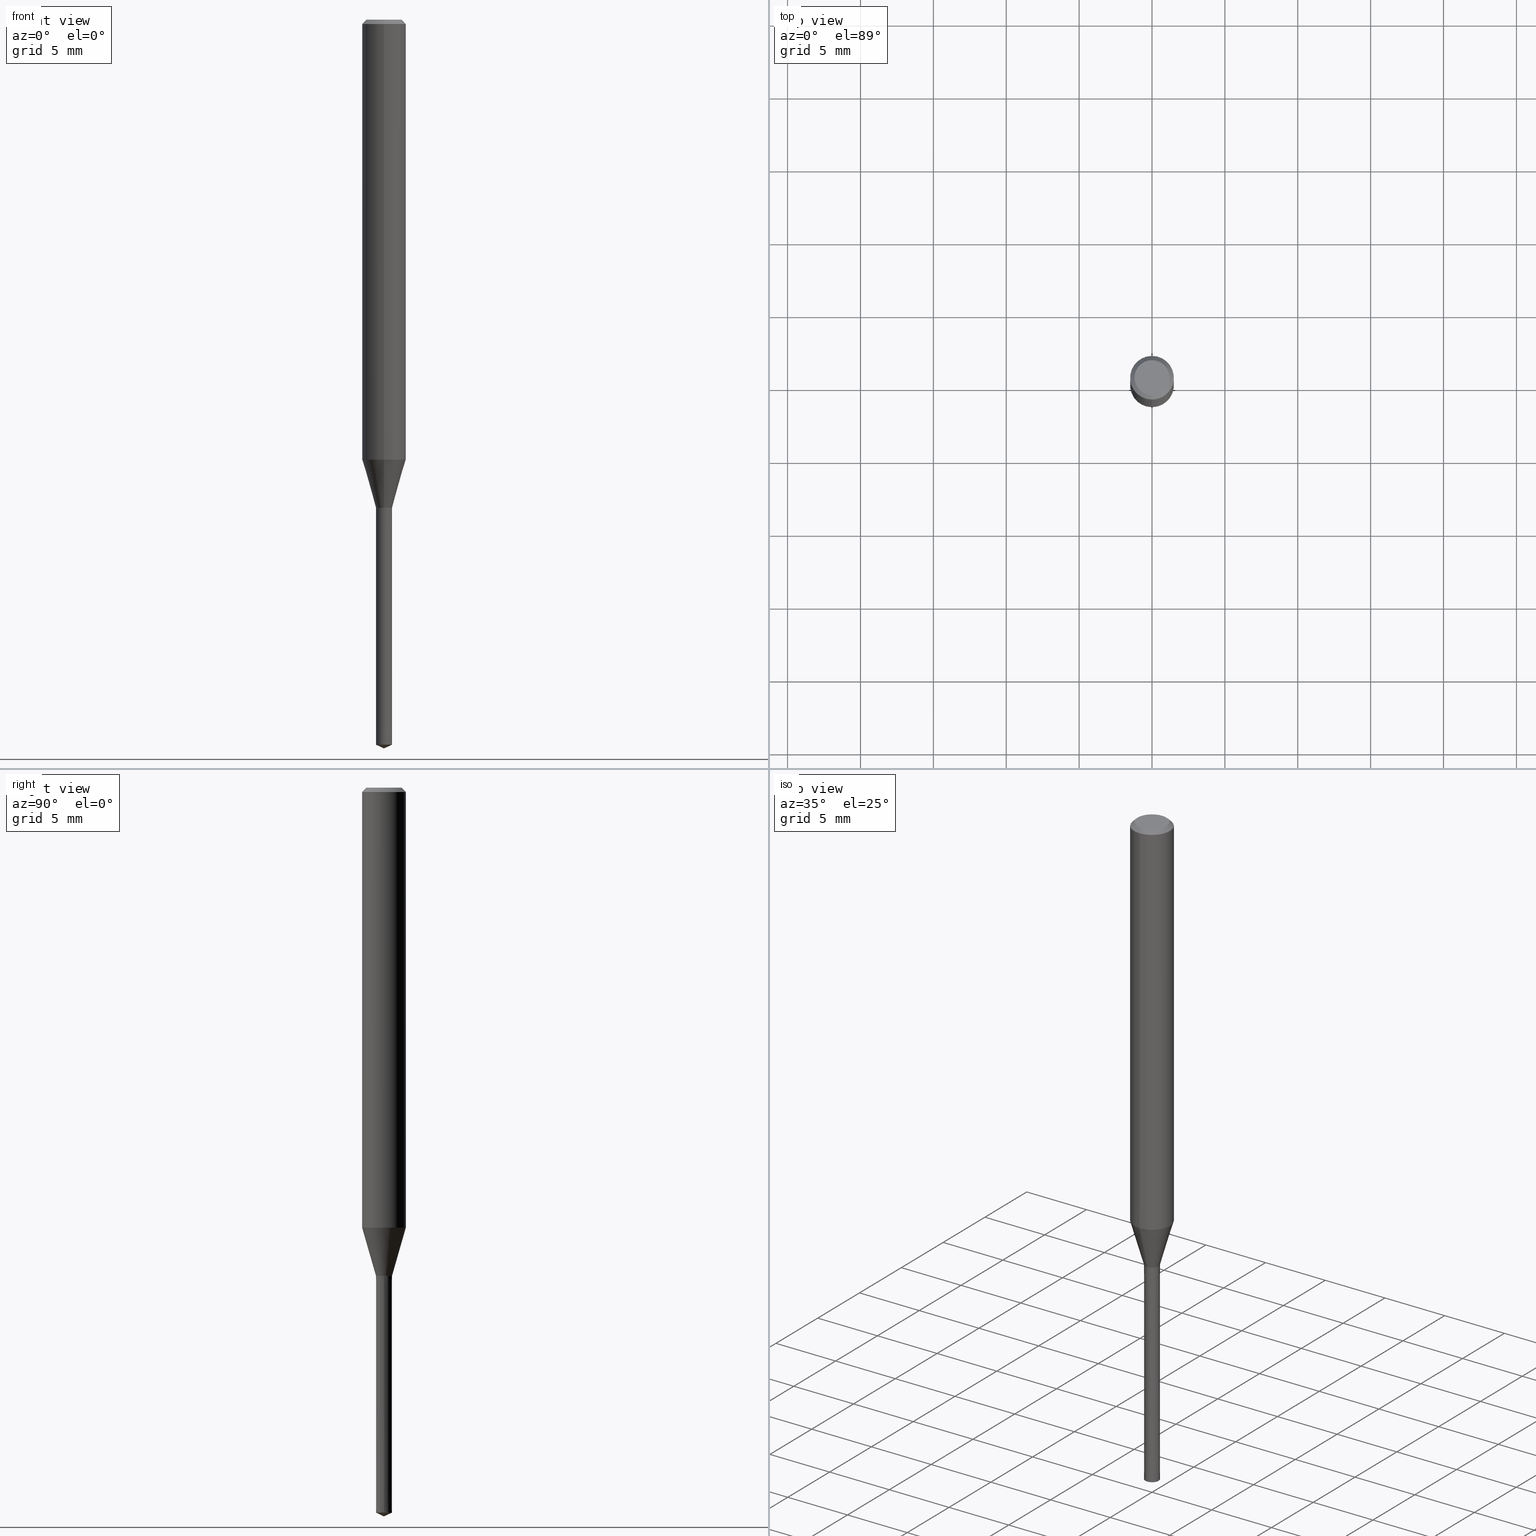
[diagram: canonical four-view strip — front | top / right | iso, engineering-drawing reading convention]
A machine part, canonical four-view strip (front | top / right | iso — engineering-drawing reading convention). The complete STEP part file that produces these views, byte-faithful:
ISO-10303-21;
HEADER;
FILE_DESCRIPTION(('no description'),'unknown implementation level');
FILE_NAME('UTDLX2110-165-Huellk.stp','  ',('CIMSOURCE GmbH'),('CADClick - KiM GmbH - www.kimweb.de'),'unknown preprocess','ACIS','unknown authorization');
FILE_SCHEMA(('automotive_design'));
ENDSEC;
DATA;
#1=MECHANICAL_DESIGN_GEOMETRIC_PRESENTATION_REPRESENTATION(' ',(#14,#15,#16,#17,#18,#19,#20,#21,#22,#23,#24,#25,#26,#27,#28,#29,#30,#31,#32,#33,#34,#35,#36,#37,#38,#39,#40,#41,#42,#43,#44,#45,#46,#47,#48,#49,#50,#51,#52,#53,#54,#55,#56,#57,#58,#59,#60,#61,#62,#63,#64,#65,#66,#67,#68,#69,#70,#71),#10);
#2=PRODUCT_DEFINITION_CONTEXT('',#72,'design');
#3=APPLICATION_PROTOCOL_DEFINITION('INTERNATIONAL STANDARD','automotive_design',1994,#72);
#4=PRODUCT_CATEGORY_RELATIONSHIP('NONE','NONE',#73,#74);
#5=SHAPE_DEFINITION_REPRESENTATION(#75,#76);
#6=PRODUCT_DEFINITION_CONTEXT('',#77,'design');
#7=APPLICATION_PROTOCOL_DEFINITION('INTERNATIONAL STANDARD','automotive_design',1994,#77);
#8=PRODUCT_CATEGORY_RELATIONSHIP('NONE','NONE',#78,#79);
#9=SHAPE_DEFINITION_REPRESENTATION(#80,#81);
#10= (GEOMETRIC_REPRESENTATION_CONTEXT(3)GLOBAL_UNCERTAINTY_ASSIGNED_CONTEXT((#84))GLOBAL_UNIT_ASSIGNED_CONTEXT((#86,#87,#88))REPRESENTATION_CONTEXT('NONE','WORKSPACE'));
#14=STYLED_ITEM('',(#90),#91);
#15=STYLED_ITEM('',(#92),#93);
#16=STYLED_ITEM('',(#94),#95);
#17=STYLED_ITEM('',(#96),#97);
#18=STYLED_ITEM('',(#98),#99);
#19=STYLED_ITEM('',(#100),#101);
#20=STYLED_ITEM('',(#102),#103);
#21=STYLED_ITEM('',(#104),#105);
#22=STYLED_ITEM('',(#106),#107);
#23=STYLED_ITEM('',(#108),#109);
#24=STYLED_ITEM('',(#110),#111);
#25=STYLED_ITEM('',(#112),#113);
#26=STYLED_ITEM('',(#114),#115);
#27=STYLED_ITEM('',(#116),#117);
#28=STYLED_ITEM('',(#118),#119);
#29=STYLED_ITEM('',(#120),#121);
#30=STYLED_ITEM('',(#122),#123);
#31=STYLED_ITEM('',(#124),#125);
#32=STYLED_ITEM('',(#126),#127);
#33=STYLED_ITEM('',(#128),#129);
#34=STYLED_ITEM('',(#130),#131);
#35=STYLED_ITEM('',(#132),#133);
#36=STYLED_ITEM('',(#134),#135);
#37=STYLED_ITEM('',(#136),#137);
#38=STYLED_ITEM('',(#138),#139);
#39=STYLED_ITEM('',(#140),#141);
#40=STYLED_ITEM('',(#142),#143);
#41=STYLED_ITEM('',(#144),#145);
#42=STYLED_ITEM('',(#146),#147);
#43=STYLED_ITEM('',(#148),#149);
#44=STYLED_ITEM('',(#150),#151);
#45=STYLED_ITEM('',(#152),#153);
#46=STYLED_ITEM('',(#154),#155);
#47=STYLED_ITEM('',(#156),#157);
#48=STYLED_ITEM('',(#158),#159);
#49=STYLED_ITEM('',(#160),#161);
#50=STYLED_ITEM('',(#162),#163);
#51=STYLED_ITEM('',(#164),#165);
#52=STYLED_ITEM('',(#166),#167);
#53=STYLED_ITEM('',(#168),#169);
#54=STYLED_ITEM('',(#170),#171);
#55=STYLED_ITEM('',(#172),#173);
#56=STYLED_ITEM('',(#174),#175);
#57=STYLED_ITEM('',(#176),#177);
#58=STYLED_ITEM('',(#178),#179);
#59=STYLED_ITEM('',(#180),#181);
#60=STYLED_ITEM('',(#182),#183);
#61=STYLED_ITEM('',(#184),#185);
#62=STYLED_ITEM('',(#186),#187);
#63=STYLED_ITEM('',(#188),#189);
#64=STYLED_ITEM('',(#190),#191);
#65=STYLED_ITEM('',(#192),#193);
#66=STYLED_ITEM('',(#194),#195);
#67=STYLED_ITEM('',(#196),#197);
#68=STYLED_ITEM('',(#198),#199);
#69=STYLED_ITEM('',(#200),#201);
#70=STYLED_ITEM('',(#202),#203);
#71=STYLED_ITEM('',(#204),#205);
#72=APPLICATION_CONTEXT(' ');
#73=PRODUCT_CATEGORY('part','NONE');
#74=PRODUCT_RELATED_PRODUCT_CATEGORY('detail',' ',(#206));
#75=PRODUCT_DEFINITION_SHAPE('NONE','NONE',#207);
#76=ADVANCED_BREP_SHAPE_REPRESENTATION('1',(#141,#208),#10);
#77=APPLICATION_CONTEXT(' ');
#78=PRODUCT_CATEGORY('part','NONE');
#79=PRODUCT_RELATED_PRODUCT_CATEGORY('detail',' ',(#209));
#80=PRODUCT_DEFINITION_SHAPE('NONE','NONE',#210);
#81=ADVANCED_BREP_SHAPE_REPRESENTATION('2',(#123,#211),#10);
#84=UNCERTAINTY_MEASURE_WITH_UNIT(LENGTH_MEASURE(1.0E-006),#86,'','');
#86= (CONVERSION_BASED_UNIT('MILLIMETRE',#214)LENGTH_UNIT()NAMED_UNIT(#217));
#87= (NAMED_UNIT(#219)PLANE_ANGLE_UNIT()SI_UNIT($,.RADIAN.));
#88= (NAMED_UNIT(#219)SOLID_ANGLE_UNIT()SI_UNIT($,.STERADIAN.));
#90=PRESENTATION_STYLE_ASSIGNMENT((#225));
#91=VERTEX_POINT('',#226);
#92=PRESENTATION_STYLE_ASSIGNMENT((#227));
#93=EDGE_CURVE('',#195,#101,#228,.T.);
#94=PRESENTATION_STYLE_ASSIGNMENT((#229));
#95=VERTEX_POINT('',#230);
#96=PRESENTATION_STYLE_ASSIGNMENT((#231));
#97=VERTEX_POINT('',#232);
#98=PRESENTATION_STYLE_ASSIGNMENT((#233));
#99=VERTEX_POINT('',#234);
#100=PRESENTATION_STYLE_ASSIGNMENT((#235));
#101=VERTEX_POINT('',#236);
#102=PRESENTATION_STYLE_ASSIGNMENT((#237));
#103=ADVANCED_FACE('',(#238),#239,.T.);
#104=PRESENTATION_STYLE_ASSIGNMENT((#240));
#105=EDGE_CURVE('',#121,#173,#241,.T.);
#106=PRESENTATION_STYLE_ASSIGNMENT((#242));
#107=ADVANCED_FACE('',(#243),#244,.T.);
#108=PRESENTATION_STYLE_ASSIGNMENT((#245));
#109=ADVANCED_FACE('',(#246),#247,.T.);
#110=PRESENTATION_STYLE_ASSIGNMENT((#248));
#111=EDGE_CURVE('',#145,#205,#249,.T.);
#112=PRESENTATION_STYLE_ASSIGNMENT((#250));
#113=EDGE_CURVE('',#99,#145,#251,.T.);
#114=PRESENTATION_STYLE_ASSIGNMENT((#252));
#115=EDGE_CURVE('',#205,#131,#253,.T.);
#116=PRESENTATION_STYLE_ASSIGNMENT((#254));
#117=EDGE_CURVE('',#101,#91,#255,.T.);
#118=PRESENTATION_STYLE_ASSIGNMENT((#256));
#119=ADVANCED_FACE('',(#257),#258,.T.);
#120=PRESENTATION_STYLE_ASSIGNMENT((#259));
#121=VERTEX_POINT('',#260);
#122=PRESENTATION_STYLE_ASSIGNMENT((#261));
#123=MANIFOLD_SOLID_BREP('2',#262);
#124=PRESENTATION_STYLE_ASSIGNMENT((#263));
#125=EDGE_CURVE('',#131,#139,#264,.T.);
#126=PRESENTATION_STYLE_ASSIGNMENT((#265));
#127=EDGE_CURVE('',#95,#195,#266,.T.);
#128=PRESENTATION_STYLE_ASSIGNMENT((#267));
#129=ADVANCED_FACE('',(#268),#269,.T.);
#130=PRESENTATION_STYLE_ASSIGNMENT((#270));
#131=VERTEX_POINT('',#271);
#132=PRESENTATION_STYLE_ASSIGNMENT((#272));
#133=ADVANCED_FACE('',(#273),#274,.T.);
#134=PRESENTATION_STYLE_ASSIGNMENT((#275));
#135=EDGE_CURVE('',#173,#121,#276,.T.);
#136=PRESENTATION_STYLE_ASSIGNMENT((#277));
#137=EDGE_CURVE('',#95,#91,#278,.T.);
#138=PRESENTATION_STYLE_ASSIGNMENT((#279));
#139=VERTEX_POINT('',#280);
#140=PRESENTATION_STYLE_ASSIGNMENT((#281));
#141=MANIFOLD_SOLID_BREP('1',#282);
#142=PRESENTATION_STYLE_ASSIGNMENT((#283));
#143=ADVANCED_FACE('',(#284),#285,.T.);
#144=PRESENTATION_STYLE_ASSIGNMENT((#286));
#145=VERTEX_POINT('',#287);
#146=PRESENTATION_STYLE_ASSIGNMENT((#288));
#147=EDGE_CURVE('',#99,#205,#289,.T.);
#148=PRESENTATION_STYLE_ASSIGNMENT((#290));
#149=EDGE_CURVE('',#101,#195,#291,.T.);
#150=PRESENTATION_STYLE_ASSIGNMENT((#292));
#151=EDGE_CURVE('',#165,#175,#293,.T.);
#152=PRESENTATION_STYLE_ASSIGNMENT((#294));
#153=EDGE_CURVE('',#139,#99,#295,.T.);
#154=PRESENTATION_STYLE_ASSIGNMENT((#296));
#155=EDGE_CURVE('',#139,#131,#297,.T.);
#156=PRESENTATION_STYLE_ASSIGNMENT((#298));
#157=EDGE_CURVE('',#173,#97,#299,.T.);
#158=PRESENTATION_STYLE_ASSIGNMENT((#300));
#159=VERTEX_POINT('',#301);
#160=PRESENTATION_STYLE_ASSIGNMENT((#302));
#161=ADVANCED_FACE('',(#303),#304,.T.);
#162=PRESENTATION_STYLE_ASSIGNMENT((#305));
#163=EDGE_CURVE('',#205,#99,#306,.T.);
#164=PRESENTATION_STYLE_ASSIGNMENT((#307));
#165=VERTEX_POINT('',#308);
#166=PRESENTATION_STYLE_ASSIGNMENT((#309));
#167=ADVANCED_FACE('',(#310),#311,.T.);
#168=PRESENTATION_STYLE_ASSIGNMENT((#312));
#169=EDGE_CURVE('',#165,#159,#313,.T.);
#170=PRESENTATION_STYLE_ASSIGNMENT((#314));
#171=EDGE_CURVE('',#91,#95,#315,.T.);
#172=PRESENTATION_STYLE_ASSIGNMENT((#316));
#173=VERTEX_POINT('',#317);
#174=PRESENTATION_STYLE_ASSIGNMENT((#318));
#175=VERTEX_POINT('',#319);
#176=PRESENTATION_STYLE_ASSIGNMENT((#320));
#177=ADVANCED_FACE('',(#321),#322,.T.);
#178=PRESENTATION_STYLE_ASSIGNMENT((#323));
#179=ADVANCED_FACE('',(#324),#325,.T.);
#180=PRESENTATION_STYLE_ASSIGNMENT((#326));
#181=ADVANCED_FACE('',(#327),#328,.T.);
#182=PRESENTATION_STYLE_ASSIGNMENT((#329));
#183=EDGE_CURVE('',#91,#173,#330,.T.);
#184=PRESENTATION_STYLE_ASSIGNMENT((#331));
#185=EDGE_CURVE('',#159,#121,#332,.T.);
#186=PRESENTATION_STYLE_ASSIGNMENT((#333));
#187=EDGE_CURVE('',#121,#95,#334,.T.);
#188=PRESENTATION_STYLE_ASSIGNMENT((#335));
#189=EDGE_CURVE('',#97,#175,#336,.T.);
#190=PRESENTATION_STYLE_ASSIGNMENT((#337));
#191=EDGE_CURVE('',#175,#165,#338,.T.);
#192=PRESENTATION_STYLE_ASSIGNMENT((#339));
#193=ADVANCED_FACE('',(#340),#341,.T.);
#194=PRESENTATION_STYLE_ASSIGNMENT((#342));
#195=VERTEX_POINT('',#343);
#196=PRESENTATION_STYLE_ASSIGNMENT((#344));
#197=EDGE_CURVE('',#159,#97,#345,.T.);
#198=PRESENTATION_STYLE_ASSIGNMENT((#346));
#199=ADVANCED_FACE('',(#347),#348,.T.);
#200=PRESENTATION_STYLE_ASSIGNMENT((#349));
#201=ADVANCED_FACE('',(#350),#351,.T.);
#202=PRESENTATION_STYLE_ASSIGNMENT((#352));
#203=EDGE_CURVE('',#97,#159,#353,.T.);
#204=PRESENTATION_STYLE_ASSIGNMENT((#354));
#205=VERTEX_POINT('',#355);
#206=PRODUCT('1','1','PART-1-DESC',(#356));
#207=PRODUCT_DEFINITION('NONE','NONE',#357,#2);
#208=AXIS2_PLACEMENT_3D('',#358,#359,#360);
#209=PRODUCT('2','2','PART-2-DESC',(#361));
#210=PRODUCT_DEFINITION('NONE','NONE',#362,#6);
#211=AXIS2_PLACEMENT_3D('',#363,#364,#365);
#214=LENGTH_MEASURE_WITH_UNIT(LENGTH_MEASURE(1.0),#366);
#217=DIMENSIONAL_EXPONENTS(1.0,0.0,0.0,0.0,0.0,0.0,0.0);
#219=DIMENSIONAL_EXPONENTS(0.0,0.0,0.0,0.0,0.0,0.0,0.0);
#225=POINT_STYLE(' ',#367,POSITIVE_LENGTH_MEASURE(1.0E-006),#368);
#226=CARTESIAN_POINT('',(6.73533494602308E-017,-0.55,-33.4991339745962));
#227=CURVE_STYLE('',#369,POSITIVE_LENGTH_MEASURE(1.0E-006),#370);
#228=CIRCLE('',#371,0.5505);
#229=POINT_STYLE(' ',#372,POSITIVE_LENGTH_MEASURE(1.0E-006),#373);
#230=CARTESIAN_POINT('',(0.0,0.55,-33.4991339745962));
#231=POINT_STYLE(' ',#374,POSITIVE_LENGTH_MEASURE(1.0E-006),#375);
#232=CARTESIAN_POINT('',(1.83690953073357E-016,-1.5,-0.300000000000001));
#233=POINT_STYLE(' ',#376,POSITIVE_LENGTH_MEASURE(1.0E-006),#377);
#234=CARTESIAN_POINT('',(-0.55,0.0,-49.74353079));
#235=POINT_STYLE(' ',#378,POSITIVE_LENGTH_MEASURE(1.0E-006),#379);
#236=CARTESIAN_POINT('',(6.74145797779219E-017,-0.5505,-33.5));
#237=SURFACE_STYLE_USAGE(.BOTH.,#380);
#238=FACE_OUTER_BOUND('',#381,.T.);
#239=PLANE('',#382);
#240=CURVE_STYLE('',#383,POSITIVE_LENGTH_MEASURE(1.0E-006),#384);
#241=CIRCLE('',#385,1.5);
#242=SURFACE_STYLE_USAGE(.BOTH.,#386);
#243=FACE_OUTER_BOUND('',#387,.T.);
#244=CONICAL_SURFACE('',#388,0.55025,0.52359877559836);
#245=SURFACE_STYLE_USAGE(.BOTH.,#389);
#246=FACE_OUTER_BOUND('',#390,.T.);
#247=PLANE('',#391);
#248=CURVE_STYLE('',#392,POSITIVE_LENGTH_MEASURE(1.0E-006),#393);
#249=LINE('',#394,#395);
#250=CURVE_STYLE('',#396,POSITIVE_LENGTH_MEASURE(1.0E-006),#397);
#251=LINE('',#398,#399);
#252=CURVE_STYLE('',#400,POSITIVE_LENGTH_MEASURE(1.0E-006),#401);
#253=LINE('',#402,#403);
#254=CURVE_STYLE('',#404,POSITIVE_LENGTH_MEASURE(1.0E-006),#405);
#255=LINE('',#406,#407);
#256=SURFACE_STYLE_USAGE(.BOTH.,#408);
#257=FACE_OUTER_BOUND('',#409,.T.);
#258=CYLINDRICAL_SURFACE('',#410,1.5);
#259=POINT_STYLE(' ',#411,POSITIVE_LENGTH_MEASURE(1.0E-006),#412);
#260=CARTESIAN_POINT('',(0.0,1.5,-30.187));
#261=SURFACE_STYLE_USAGE(.BOTH.,#413);
#262=CLOSED_SHELL('',(#129,#201,#143,#179,#181));
#263=CURVE_STYLE('',#414,POSITIVE_LENGTH_MEASURE(1.0E-006),#415);
#264=CIRCLE('',#416,0.551);
#265=CURVE_STYLE('',#417,POSITIVE_LENGTH_MEASURE(1.0E-006),#418);
#266=LINE('',#419,#420);
#267=SURFACE_STYLE_USAGE(.BOTH.,#421);
#268=FACE_OUTER_BOUND('',#422,.T.);
#269=CONICAL_SURFACE('',#423,0.275,1.13446401676117);
#270=POINT_STYLE(' ',#424,POSITIVE_LENGTH_MEASURE(1.0E-006),#425);
#271=CARTESIAN_POINT('',(0.551,6.7475810095613E-017,-33.5));
#272=SURFACE_STYLE_USAGE(.BOTH.,#426);
#273=FACE_OUTER_BOUND('',#427,.T.);
#274=CONICAL_SURFACE('',#428,1.025,0.279325455519514);
#275=CURVE_STYLE('',#429,POSITIVE_LENGTH_MEASURE(1.0E-006),#430);
#276=CIRCLE('',#431,1.5);
#277=CURVE_STYLE('',#432,POSITIVE_LENGTH_MEASURE(1.0E-006),#433);
#278=CIRCLE('',#434,0.55);
#279=POINT_STYLE(' ',#435,POSITIVE_LENGTH_MEASURE(1.0E-006),#436);
#280=CARTESIAN_POINT('',(-0.551,0.0,-33.5));
#281=SURFACE_STYLE_USAGE(.BOTH.,#437);
#282=CLOSED_SHELL('',(#167,#199,#193,#177,#109,#161,#119,#133,#107,#103));
#283=SURFACE_STYLE_USAGE(.BOTH.,#438);
#284=FACE_OUTER_BOUND('',#439,.T.);
#285=PLANE('',#440);
#286=POINT_STYLE(' ',#441,POSITIVE_LENGTH_MEASURE(1.0E-006),#442);
#287=CARTESIAN_POINT('',(0.0,0.0,-50.0));
#288=CURVE_STYLE('',#443,POSITIVE_LENGTH_MEASURE(1.0E-006),#444);
#289=CIRCLE('',#445,0.55);
#290=CURVE_STYLE('',#446,POSITIVE_LENGTH_MEASURE(1.0E-006),#447);
#291=CIRCLE('',#448,0.5505);
#292=CURVE_STYLE('',#449,POSITIVE_LENGTH_MEASURE(1.0E-006),#450);
#293=CIRCLE('',#451,1.2);
#294=CURVE_STYLE('',#452,POSITIVE_LENGTH_MEASURE(1.0E-006),#453);
#295=LINE('',#454,#455);
#296=CURVE_STYLE('',#456,POSITIVE_LENGTH_MEASURE(1.0E-006),#457);
#297=CIRCLE('',#458,0.551);
#298=CURVE_STYLE('',#459,POSITIVE_LENGTH_MEASURE(1.0E-006),#460);
#299=LINE('',#461,#462);
#300=POINT_STYLE(' ',#463,POSITIVE_LENGTH_MEASURE(1.0E-006),#464);
#301=CARTESIAN_POINT('',(0.0,1.5,-0.300000000000001));
#302=SURFACE_STYLE_USAGE(.BOTH.,#465);
#303=FACE_OUTER_BOUND('',#466,.T.);
#304=CONICAL_SURFACE('',#467,1.35,0.785398163397447);
#305=CURVE_STYLE('',#468,POSITIVE_LENGTH_MEASURE(1.0E-006),#469);
#306=CIRCLE('',#470,0.55);
#307=POINT_STYLE(' ',#471,POSITIVE_LENGTH_MEASURE(1.0E-006),#472);
#308=CARTESIAN_POINT('',(0.0,1.2,0.0));
#309=SURFACE_STYLE_USAGE(.BOTH.,#473);
#310=FACE_OUTER_BOUND('',#474,.T.);
#311=CONICAL_SURFACE('',#475,0.55025,0.52359877559836);
#312=CURVE_STYLE('',#476,POSITIVE_LENGTH_MEASURE(1.0E-006),#477);
#313=LINE('',#478,#479);
#314=CURVE_STYLE('',#480,POSITIVE_LENGTH_MEASURE(1.0E-006),#481);
#315=CIRCLE('',#482,0.55);
#316=POINT_STYLE(' ',#483,POSITIVE_LENGTH_MEASURE(1.0E-006),#484);
#317=CARTESIAN_POINT('',(1.83690953073357E-016,-1.5,-30.187));
#318=POINT_STYLE(' ',#485,POSITIVE_LENGTH_MEASURE(1.0E-006),#486);
#319=CARTESIAN_POINT('',(1.46952762458685E-016,-1.2,0.0));
#320=SURFACE_STYLE_USAGE(.BOTH.,#487);
#321=FACE_OUTER_BOUND('',#488,.T.);
#322=CONICAL_SURFACE('',#489,1.35,0.785398163397447);
#323=SURFACE_STYLE_USAGE(.BOTH.,#490);
#324=FACE_OUTER_BOUND('',#491,.T.);
#325=CONICAL_SURFACE('',#492,0.5505,6.15629700010971E-005);
#326=SURFACE_STYLE_USAGE(.BOTH.,#493);
#327=FACE_OUTER_BOUND('',#494,.T.);
#328=CONICAL_SURFACE('',#495,0.275,1.13446401676117);
#329=CURVE_STYLE('',#496,POSITIVE_LENGTH_MEASURE(1.0E-006),#497);
#330=LINE('',#498,#499);
#331=CURVE_STYLE('',#500,POSITIVE_LENGTH_MEASURE(1.0E-006),#501);
#332=LINE('',#502,#503);
#333=CURVE_STYLE('',#504,POSITIVE_LENGTH_MEASURE(1.0E-006),#505);
#334=LINE('',#506,#507);
#335=CURVE_STYLE('',#508,POSITIVE_LENGTH_MEASURE(1.0E-006),#509);
#336=LINE('',#510,#511);
#337=CURVE_STYLE('',#512,POSITIVE_LENGTH_MEASURE(1.0E-006),#513);
#338=CIRCLE('',#514,1.2);
#339=SURFACE_STYLE_USAGE(.BOTH.,#515);
#340=FACE_OUTER_BOUND('',#516,.T.);
#341=CYLINDRICAL_SURFACE('',#517,1.5);
#342=POINT_STYLE(' ',#518,POSITIVE_LENGTH_MEASURE(1.0E-006),#519);
#343=CARTESIAN_POINT('',(0.0,0.5505,-33.5));
#344=CURVE_STYLE('',#520,POSITIVE_LENGTH_MEASURE(1.0E-006),#521);
#345=CIRCLE('',#522,1.5);
#346=SURFACE_STYLE_USAGE(.BOTH.,#523);
#347=FACE_OUTER_BOUND('',#524,.T.);
#348=CONICAL_SURFACE('',#525,1.025,0.279325455519514);
#349=SURFACE_STYLE_USAGE(.BOTH.,#526);
#350=FACE_OUTER_BOUND('',#527,.T.);
#351=CONICAL_SURFACE('',#528,0.5505,6.15629700010971E-005);
#352=CURVE_STYLE('',#529,POSITIVE_LENGTH_MEASURE(1.0E-006),#530);
#353=CIRCLE('',#531,1.5);
#354=POINT_STYLE(' ',#532,POSITIVE_LENGTH_MEASURE(1.0E-006),#533);
#355=CARTESIAN_POINT('',(0.55,6.73533494602308E-017,-49.74353079));
#356=PRODUCT_CONTEXT('',#72,'mechanical');
#357=PRODUCT_DEFINITION_FORMATION_WITH_SPECIFIED_SOURCE(' ','NONE',#206,.NOT_KNOWN.);
#358=CARTESIAN_POINT('',(0.0,0.0,0.0));
#359=DIRECTION('',(0.0,0.0,1.0));
#360=DIRECTION('',(1.0,0.0,0.0));
#361=PRODUCT_CONTEXT('',#77,'mechanical');
#362=PRODUCT_DEFINITION_FORMATION_WITH_SPECIFIED_SOURCE(' ','NONE',#209,.NOT_KNOWN.);
#363=CARTESIAN_POINT('',(0.0,0.0,0.0));
#364=DIRECTION('',(0.0,0.0,1.0));
#365=DIRECTION('',(1.0,0.0,0.0));
#366= (NAMED_UNIT(#217)LENGTH_UNIT()SI_UNIT(.MILLI.,.METRE.));
#367=PRE_DEFINED_MARKER('');
#368=COLOUR_RGB('',0.498039215803146,0.498039215803146,0.498039215803146);
#369=DRAUGHTING_PRE_DEFINED_CURVE_FONT('continuous');
#370=COLOUR_RGB('',0.498039215803146,0.498039215803146,0.498039215803146);
#371=AXIS2_PLACEMENT_3D('',#535,#536,#537);
#372=PRE_DEFINED_MARKER('');
#373=COLOUR_RGB('',0.498039215803146,0.498039215803146,0.498039215803146);
#374=PRE_DEFINED_MARKER('');
#375=COLOUR_RGB('',0.498039215803146,0.498039215803146,0.498039215803146);
#376=PRE_DEFINED_MARKER('');
#377=COLOUR_RGB('',0.800000011920929,0.800000011920929,0.800000011920929);
#378=PRE_DEFINED_MARKER('');
#379=COLOUR_RGB('',0.498039215803146,0.498039215803146,0.498039215803146);
#380=SURFACE_SIDE_STYLE('',(#538));
#381=EDGE_LOOP('',(#539,#540));
#382=AXIS2_PLACEMENT_3D('',#541,#542,#543);
#383=DRAUGHTING_PRE_DEFINED_CURVE_FONT('continuous');
#384=COLOUR_RGB('',0.498039215803146,0.498039215803146,0.498039215803146);
#385=AXIS2_PLACEMENT_3D('',#544,#545,#546);
#386=SURFACE_SIDE_STYLE('',(#547));
#387=EDGE_LOOP('',(#548,#549,#550,#551));
#388=AXIS2_PLACEMENT_3D('',#552,#553,#554);
#389=SURFACE_SIDE_STYLE('',(#555));
#390=EDGE_LOOP('',(#556,#557));
#391=AXIS2_PLACEMENT_3D('',#558,#559,#560);
#392=DRAUGHTING_PRE_DEFINED_CURVE_FONT('continuous');
#393=COLOUR_RGB('',0.800000011920929,0.800000011920929,0.800000011920929);
#394=CARTESIAN_POINT('',(0.275,3.36766747301154E-017,-49.871765395));
#395=VECTOR('',#561,1.0);
#396=DRAUGHTING_PRE_DEFINED_CURVE_FONT('continuous');
#397=COLOUR_RGB('',0.800000011920929,0.800000011920929,0.800000011920929);
#398=CARTESIAN_POINT('',(-0.275,-3.36766747301154E-017,-49.871765395));
#399=VECTOR('',#562,1.0);
#400=DRAUGHTING_PRE_DEFINED_CURVE_FONT('continuous');
#401=COLOUR_RGB('',0.800000011920929,0.800000011920929,0.800000011920929);
#402=CARTESIAN_POINT('',(0.5505,6.74145797779219E-017,-41.621765395));
#403=VECTOR('',#563,1.0);
#404=DRAUGHTING_PRE_DEFINED_CURVE_FONT('continuous');
#405=COLOUR_RGB('',0.498039215803146,0.498039215803146,0.498039215803146);
#406=CARTESIAN_POINT('',(6.73839646190763E-017,-0.55025,-33.4995669872981));
#407=VECTOR('',#564,1.0);
#408=SURFACE_SIDE_STYLE('',(#565));
#409=EDGE_LOOP('',(#566,#567,#568,#569));
#410=AXIS2_PLACEMENT_3D('',#570,#571,#572);
#411=PRE_DEFINED_MARKER('');
#412=COLOUR_RGB('',0.498039215803146,0.498039215803146,0.498039215803146);
#413=SURFACE_SIDE_STYLE('',(#573));
#414=DRAUGHTING_PRE_DEFINED_CURVE_FONT('continuous');
#415=COLOUR_RGB('',0.800000011920929,0.800000011920929,0.800000011920929);
#416=AXIS2_PLACEMENT_3D('',#574,#575,#576);
#417=DRAUGHTING_PRE_DEFINED_CURVE_FONT('continuous');
#418=COLOUR_RGB('',0.498039215803146,0.498039215803146,0.498039215803146);
#419=CARTESIAN_POINT('',(-6.73839646190763E-017,0.55025,-33.4995669872981));
#420=VECTOR('',#577,1.0);
#421=SURFACE_SIDE_STYLE('',(#578));
#422=EDGE_LOOP('',(#579,#580,#581));
#423=AXIS2_PLACEMENT_3D('',#582,#583,#584);
#424=PRE_DEFINED_MARKER('');
#425=COLOUR_RGB('',0.800000011920929,0.800000011920929,0.800000011920929);
#426=SURFACE_SIDE_STYLE('',(#585));
#427=EDGE_LOOP('',(#586,#587,#588,#589));
#428=AXIS2_PLACEMENT_3D('',#590,#591,#592);
#429=DRAUGHTING_PRE_DEFINED_CURVE_FONT('continuous');
#430=COLOUR_RGB('',0.498039215803146,0.498039215803146,0.498039215803146);
#431=AXIS2_PLACEMENT_3D('',#593,#594,#595);
#432=DRAUGHTING_PRE_DEFINED_CURVE_FONT('continuous');
#433=COLOUR_RGB('',0.498039215803146,0.498039215803146,0.498039215803146);
#434=AXIS2_PLACEMENT_3D('',#596,#597,#598);
#435=PRE_DEFINED_MARKER('');
#436=COLOUR_RGB('',0.800000011920929,0.800000011920929,0.800000011920929);
#437=SURFACE_SIDE_STYLE('',(#599));
#438=SURFACE_SIDE_STYLE('',(#600));
#439=EDGE_LOOP('',(#601,#602));
#440=AXIS2_PLACEMENT_3D('',#603,#604,#605);
#441=PRE_DEFINED_MARKER('');
#442=COLOUR_RGB('',0.800000011920929,0.800000011920929,0.800000011920929);
#443=DRAUGHTING_PRE_DEFINED_CURVE_FONT('continuous');
#444=COLOUR_RGB('',0.800000011920929,0.800000011920929,0.800000011920929);
#445=AXIS2_PLACEMENT_3D('',#606,#607,#608);
#446=DRAUGHTING_PRE_DEFINED_CURVE_FONT('continuous');
#447=COLOUR_RGB('',0.498039215803146,0.498039215803146,0.498039215803146);
#448=AXIS2_PLACEMENT_3D('',#609,#610,#611);
#449=DRAUGHTING_PRE_DEFINED_CURVE_FONT('continuous');
#450=COLOUR_RGB('',0.498039215803146,0.498039215803146,0.498039215803146);
#451=AXIS2_PLACEMENT_3D('',#612,#613,#614);
#452=DRAUGHTING_PRE_DEFINED_CURVE_FONT('continuous');
#453=COLOUR_RGB('',0.800000011920929,0.800000011920929,0.800000011920929);
#454=CARTESIAN_POINT('',(-0.5505,-6.74145797779219E-017,-41.621765395));
#455=VECTOR('',#615,1.0);
#456=DRAUGHTING_PRE_DEFINED_CURVE_FONT('continuous');
#457=COLOUR_RGB('',0.800000011920929,0.800000011920929,0.800000011920929);
#458=AXIS2_PLACEMENT_3D('',#616,#617,#618);
#459=DRAUGHTING_PRE_DEFINED_CURVE_FONT('continuous');
#460=COLOUR_RGB('',0.498039215803146,0.498039215803146,0.498039215803146);
#461=CARTESIAN_POINT('',(1.83690953073357E-016,-1.5,-15.2435));
#462=VECTOR('',#619,1.0);
#463=PRE_DEFINED_MARKER('');
#464=COLOUR_RGB('',0.498039215803146,0.498039215803146,0.498039215803146);
#465=SURFACE_SIDE_STYLE('',(#620));
#466=EDGE_LOOP('',(#621,#622,#623,#624));
#467=AXIS2_PLACEMENT_3D('',#625,#626,#627);
#468=DRAUGHTING_PRE_DEFINED_CURVE_FONT('continuous');
#469=COLOUR_RGB('',0.800000011920929,0.800000011920929,0.800000011920929);
#470=AXIS2_PLACEMENT_3D('',#628,#629,#630);
#471=PRE_DEFINED_MARKER('');
#472=COLOUR_RGB('',0.498039215803146,0.498039215803146,0.498039215803146);
#473=SURFACE_SIDE_STYLE('',(#631));
#474=EDGE_LOOP('',(#632,#633,#634,#635));
#475=AXIS2_PLACEMENT_3D('',#636,#637,#638);
#476=DRAUGHTING_PRE_DEFINED_CURVE_FONT('continuous');
#477=COLOUR_RGB('',0.498039215803146,0.498039215803146,0.498039215803146);
#478=CARTESIAN_POINT('',(-1.65321857766021E-016,1.35,-0.150000000000002));
#479=VECTOR('',#639,1.0);
#480=DRAUGHTING_PRE_DEFINED_CURVE_FONT('continuous');
#481=COLOUR_RGB('',0.498039215803146,0.498039215803146,0.498039215803146);
#482=AXIS2_PLACEMENT_3D('',#640,#641,#642);
#483=PRE_DEFINED_MARKER('');
#484=COLOUR_RGB('',0.498039215803146,0.498039215803146,0.498039215803146);
#485=PRE_DEFINED_MARKER('');
#486=COLOUR_RGB('',0.498039215803146,0.498039215803146,0.498039215803146);
#487=SURFACE_SIDE_STYLE('',(#643));
#488=EDGE_LOOP('',(#644,#645,#646,#647));
#489=AXIS2_PLACEMENT_3D('',#648,#649,#650);
#490=SURFACE_SIDE_STYLE('',(#651));
#491=EDGE_LOOP('',(#652,#653,#654,#655));
#492=AXIS2_PLACEMENT_3D('',#656,#657,#658);
#493=SURFACE_SIDE_STYLE('',(#659));
#494=EDGE_LOOP('',(#660,#661,#662));
#495=AXIS2_PLACEMENT_3D('',#663,#664,#665);
#496=DRAUGHTING_PRE_DEFINED_CURVE_FONT('continuous');
#497=COLOUR_RGB('',0.498039215803146,0.498039215803146,0.498039215803146);
#498=CARTESIAN_POINT('',(1.25522151266794E-016,-1.025,-31.8430669872981));
#499=VECTOR('',#666,1.0);
#500=DRAUGHTING_PRE_DEFINED_CURVE_FONT('continuous');
#501=COLOUR_RGB('',0.498039215803146,0.498039215803146,0.498039215803146);
#502=CARTESIAN_POINT('',(-1.83690953073357E-016,1.5,-15.2435));
#503=VECTOR('',#667,1.0);
#504=DRAUGHTING_PRE_DEFINED_CURVE_FONT('continuous');
#505=COLOUR_RGB('',0.498039215803146,0.498039215803146,0.498039215803146);
#506=CARTESIAN_POINT('',(-1.25522151266794E-016,1.025,-31.8430669872981));
#507=VECTOR('',#668,1.0);
#508=DRAUGHTING_PRE_DEFINED_CURVE_FONT('continuous');
#509=COLOUR_RGB('',0.498039215803146,0.498039215803146,0.498039215803146);
#510=CARTESIAN_POINT('',(1.65321857766021E-016,-1.35,-0.150000000000002));
#511=VECTOR('',#669,1.0);
#512=DRAUGHTING_PRE_DEFINED_CURVE_FONT('continuous');
#513=COLOUR_RGB('',0.498039215803146,0.498039215803146,0.498039215803146);
#514=AXIS2_PLACEMENT_3D('',#670,#671,#672);
#515=SURFACE_SIDE_STYLE('',(#673));
#516=EDGE_LOOP('',(#674,#675,#676,#677));
#517=AXIS2_PLACEMENT_3D('',#678,#679,#680);
#518=PRE_DEFINED_MARKER('');
#519=COLOUR_RGB('',0.498039215803146,0.498039215803146,0.498039215803146);
#520=DRAUGHTING_PRE_DEFINED_CURVE_FONT('continuous');
#521=COLOUR_RGB('',0.498039215803146,0.498039215803146,0.498039215803146);
#522=AXIS2_PLACEMENT_3D('',#681,#682,#683);
#523=SURFACE_SIDE_STYLE('',(#684));
#524=EDGE_LOOP('',(#685,#686,#687,#688));
#525=AXIS2_PLACEMENT_3D('',#689,#690,#691);
#526=SURFACE_SIDE_STYLE('',(#692));
#527=EDGE_LOOP('',(#693,#694,#695,#696));
#528=AXIS2_PLACEMENT_3D('',#697,#698,#699);
#529=DRAUGHTING_PRE_DEFINED_CURVE_FONT('continuous');
#530=COLOUR_RGB('',0.498039215803146,0.498039215803146,0.498039215803146);
#531=AXIS2_PLACEMENT_3D('',#700,#701,#702);
#532=PRE_DEFINED_MARKER('');
#533=COLOUR_RGB('',0.800000011920929,0.800000011920929,0.800000011920929);
#535=CARTESIAN_POINT('',(0.0,0.0,-33.5));
#536=DIRECTION('',(0.0,0.0,-1.0));
#537=DIRECTION('',(0.0,1.0,0.0));
#538=SURFACE_STYLE_FILL_AREA(#703);
#539=ORIENTED_EDGE('',*,*,#93,.T.);
#540=ORIENTED_EDGE('',*,*,#149,.T.);
#541=CARTESIAN_POINT('',(0.0,0.27525,-33.5));
#542=DIRECTION('',(0.0,0.0,-1.0));
#543=DIRECTION('',(0.0,1.0,0.0));
#544=CARTESIAN_POINT('',(0.0,0.0,-30.187));
#545=DIRECTION('',(0.0,0.0,-1.0));
#546=DIRECTION('',(0.0,1.0,0.0));
#547=SURFACE_STYLE_FILL_AREA(#704);
#548=ORIENTED_EDGE('',*,*,#127,.T.);
#549=ORIENTED_EDGE('',*,*,#149,.F.);
#550=ORIENTED_EDGE('',*,*,#117,.T.);
#551=ORIENTED_EDGE('',*,*,#171,.T.);
#552=CARTESIAN_POINT('',(0.0,0.0,-33.4995669872981));
#553=DIRECTION('',(0.0,-0.0,-1.0));
#554=DIRECTION('',(0.0,1.0,0.0));
#555=SURFACE_STYLE_FILL_AREA(#705);
#556=ORIENTED_EDGE('',*,*,#151,.F.);
#557=ORIENTED_EDGE('',*,*,#191,.F.);
#558=CARTESIAN_POINT('',(0.0,0.6,0.0));
#559=DIRECTION('',(-0.0,0.0,1.0));
#560=DIRECTION('',(0.0,-1.0,0.0));
#561=DIRECTION('',(0.906307788289653,1.10987027605822E-016,0.422618259053625));
#562=DIRECTION('',(0.906307788289653,1.10987027605822E-016,-0.422618259053625));
#563=DIRECTION('',(6.15629699622099E-005,7.53904041758984E-021,0.999999998105));
#564=DIRECTION('',(-6.12303176911254E-017,0.500000000000053,0.866025403784408));
#565=SURFACE_STYLE_FILL_AREA(#706);
#566=ORIENTED_EDGE('',*,*,#185,.T.);
#567=ORIENTED_EDGE('',*,*,#135,.F.);
#568=ORIENTED_EDGE('',*,*,#157,.T.);
#569=ORIENTED_EDGE('',*,*,#203,.T.);
#570=CARTESIAN_POINT('',(0.0,0.0,-15.2435));
#571=DIRECTION('',(-0.0,-0.0,1.0));
#572=DIRECTION('',(0.0,1.0,0.0));
#573=SURFACE_STYLE_FILL_AREA(#707);
#574=CARTESIAN_POINT('',(0.0,0.0,-33.5));
#575=DIRECTION('',(0.0,0.0,-1.0));
#576=DIRECTION('',(-1.0,0.0,0.0));
#577=DIRECTION('',(-6.12303176911254E-017,0.500000000000053,-0.866025403784408));
#578=SURFACE_STYLE_FILL_AREA(#708);
#579=ORIENTED_EDGE('',*,*,#111,.F.);
#580=ORIENTED_EDGE('',*,*,#113,.F.);
#581=ORIENTED_EDGE('',*,*,#147,.T.);
#582=CARTESIAN_POINT('',(0.0,0.0,-49.871765395));
#583=DIRECTION('',(-0.0,-0.0,1.0));
#584=DIRECTION('',(-1.0,0.0,0.0));
#585=SURFACE_STYLE_FILL_AREA(#709);
#586=ORIENTED_EDGE('',*,*,#187,.T.);
#587=ORIENTED_EDGE('',*,*,#171,.F.);
#588=ORIENTED_EDGE('',*,*,#183,.T.);
#589=ORIENTED_EDGE('',*,*,#135,.T.);
#590=CARTESIAN_POINT('',(0.0,0.0,-31.8430669872981));
#591=DIRECTION('',(-0.0,-0.0,1.0));
#592=DIRECTION('',(0.0,1.0,0.0));
#593=CARTESIAN_POINT('',(0.0,0.0,-30.187));
#594=DIRECTION('',(0.0,0.0,-1.0));
#595=DIRECTION('',(0.0,1.0,0.0));
#596=CARTESIAN_POINT('',(0.0,0.0,-33.4991339745962));
#597=DIRECTION('',(0.0,0.0,-1.0));
#598=DIRECTION('',(0.0,1.0,0.0));
#599=SURFACE_STYLE_FILL_AREA(#710);
#600=SURFACE_STYLE_FILL_AREA(#711);
#601=ORIENTED_EDGE('',*,*,#155,.F.);
#602=ORIENTED_EDGE('',*,*,#125,.F.);
#603=CARTESIAN_POINT('',(-0.2755,0.0,-33.5));
#604=DIRECTION('',(0.0,0.0,1.0));
#605=DIRECTION('',(1.0,0.0,0.0));
#606=CARTESIAN_POINT('',(0.0,0.0,-49.74353079));
#607=DIRECTION('',(0.0,0.0,-1.0));
#608=DIRECTION('',(-1.0,0.0,0.0));
#609=CARTESIAN_POINT('',(0.0,0.0,-33.5));
#610=DIRECTION('',(0.0,0.0,-1.0));
#611=DIRECTION('',(0.0,1.0,0.0));
#612=CARTESIAN_POINT('',(0.0,0.0,0.0));
#613=DIRECTION('',(0.0,0.0,-1.0));
#614=DIRECTION('',(0.0,1.0,0.0));
#615=DIRECTION('',(6.15629699622099E-005,7.53904041758984E-021,-0.999999998105));
#616=CARTESIAN_POINT('',(0.0,0.0,-33.5));
#617=DIRECTION('',(0.0,0.0,-1.0));
#618=DIRECTION('',(-1.0,0.0,0.0));
#619=DIRECTION('',(-0.0,-0.0,1.0));
#620=SURFACE_STYLE_FILL_AREA(#712);
#621=ORIENTED_EDGE('',*,*,#169,.T.);
#622=ORIENTED_EDGE('',*,*,#203,.F.);
#623=ORIENTED_EDGE('',*,*,#189,.T.);
#624=ORIENTED_EDGE('',*,*,#191,.T.);
#625=CARTESIAN_POINT('',(0.0,0.0,-0.150000000000002));
#626=DIRECTION('',(0.0,-0.0,-1.0));
#627=DIRECTION('',(0.0,1.0,0.0));
#628=CARTESIAN_POINT('',(0.0,0.0,-49.74353079));
#629=DIRECTION('',(0.0,0.0,-1.0));
#630=DIRECTION('',(-1.0,0.0,0.0));
#631=SURFACE_STYLE_FILL_AREA(#713);
#632=ORIENTED_EDGE('',*,*,#127,.F.);
#633=ORIENTED_EDGE('',*,*,#137,.T.);
#634=ORIENTED_EDGE('',*,*,#117,.F.);
#635=ORIENTED_EDGE('',*,*,#93,.F.);
#636=CARTESIAN_POINT('',(0.0,0.0,-33.4995669872981));
#637=DIRECTION('',(0.0,-0.0,-1.0));
#638=DIRECTION('',(0.0,1.0,0.0));
#639=DIRECTION('',(-8.65927457071934E-017,0.707106781186546,-0.707106781186549));
#640=CARTESIAN_POINT('',(0.0,0.0,-33.4991339745962));
#641=DIRECTION('',(0.0,0.0,-1.0));
#642=DIRECTION('',(0.0,1.0,0.0));
#643=SURFACE_STYLE_FILL_AREA(#714);
#644=ORIENTED_EDGE('',*,*,#169,.F.);
#645=ORIENTED_EDGE('',*,*,#151,.T.);
#646=ORIENTED_EDGE('',*,*,#189,.F.);
#647=ORIENTED_EDGE('',*,*,#197,.F.);
#648=CARTESIAN_POINT('',(0.0,0.0,-0.150000000000002));
#649=DIRECTION('',(0.0,-0.0,-1.0));
#650=DIRECTION('',(0.0,1.0,0.0));
#651=SURFACE_STYLE_FILL_AREA(#715);
#652=ORIENTED_EDGE('',*,*,#153,.T.);
#653=ORIENTED_EDGE('',*,*,#163,.F.);
#654=ORIENTED_EDGE('',*,*,#115,.T.);
#655=ORIENTED_EDGE('',*,*,#125,.T.);
#656=CARTESIAN_POINT('',(0.0,0.0,-41.621765395));
#657=DIRECTION('',(-0.0,-0.0,1.0));
#658=DIRECTION('',(-1.0,0.0,0.0));
#659=SURFACE_STYLE_FILL_AREA(#716);
#660=ORIENTED_EDGE('',*,*,#111,.T.);
#661=ORIENTED_EDGE('',*,*,#163,.T.);
#662=ORIENTED_EDGE('',*,*,#113,.T.);
#663=CARTESIAN_POINT('',(0.0,0.0,-49.871765395));
#664=DIRECTION('',(-0.0,-0.0,1.0));
#665=DIRECTION('',(-1.0,0.0,0.0));
#666=DIRECTION('',(3.37632924967849E-017,-0.275707311099597,0.961241633828992));
#667=DIRECTION('',(0.0,0.0,-1.0));
#668=DIRECTION('',(3.37632924967849E-017,-0.275707311099597,-0.961241633828992));
#669=DIRECTION('',(-8.65927457071934E-017,0.707106781186546,0.707106781186549));
#670=CARTESIAN_POINT('',(0.0,0.0,0.0));
#671=DIRECTION('',(0.0,0.0,-1.0));
#672=DIRECTION('',(0.0,1.0,0.0));
#673=SURFACE_STYLE_FILL_AREA(#717);
#674=ORIENTED_EDGE('',*,*,#185,.F.);
#675=ORIENTED_EDGE('',*,*,#197,.T.);
#676=ORIENTED_EDGE('',*,*,#157,.F.);
#677=ORIENTED_EDGE('',*,*,#105,.F.);
#678=CARTESIAN_POINT('',(0.0,0.0,-15.2435));
#679=DIRECTION('',(-0.0,-0.0,1.0));
#680=DIRECTION('',(0.0,1.0,0.0));
#681=CARTESIAN_POINT('',(0.0,0.0,-0.300000000000001));
#682=DIRECTION('',(0.0,0.0,-1.0));
#683=DIRECTION('',(0.0,1.0,0.0));
#684=SURFACE_STYLE_FILL_AREA(#718);
#685=ORIENTED_EDGE('',*,*,#187,.F.);
#686=ORIENTED_EDGE('',*,*,#105,.T.);
#687=ORIENTED_EDGE('',*,*,#183,.F.);
#688=ORIENTED_EDGE('',*,*,#137,.F.);
#689=CARTESIAN_POINT('',(0.0,0.0,-31.8430669872981));
#690=DIRECTION('',(-0.0,-0.0,1.0));
#691=DIRECTION('',(0.0,1.0,0.0));
#692=SURFACE_STYLE_FILL_AREA(#719);
#693=ORIENTED_EDGE('',*,*,#153,.F.);
#694=ORIENTED_EDGE('',*,*,#155,.T.);
#695=ORIENTED_EDGE('',*,*,#115,.F.);
#696=ORIENTED_EDGE('',*,*,#147,.F.);
#697=CARTESIAN_POINT('',(0.0,0.0,-41.621765395));
#698=DIRECTION('',(-0.0,-0.0,1.0));
#699=DIRECTION('',(-1.0,0.0,0.0));
#700=CARTESIAN_POINT('',(0.0,0.0,-0.300000000000001));
#701=DIRECTION('',(0.0,0.0,-1.0));
#702=DIRECTION('',(0.0,1.0,0.0));
#703=FILL_AREA_STYLE('',(#720));
#704=FILL_AREA_STYLE('',(#721));
#705=FILL_AREA_STYLE('',(#722));
#706=FILL_AREA_STYLE('',(#723));
#707=FILL_AREA_STYLE('',(#724));
#708=FILL_AREA_STYLE('',(#725));
#709=FILL_AREA_STYLE('',(#726));
#710=FILL_AREA_STYLE('',(#727));
#711=FILL_AREA_STYLE('',(#728));
#712=FILL_AREA_STYLE('',(#729));
#713=FILL_AREA_STYLE('',(#730));
#714=FILL_AREA_STYLE('',(#731));
#715=FILL_AREA_STYLE('',(#732));
#716=FILL_AREA_STYLE('',(#733));
#717=FILL_AREA_STYLE('',(#734));
#718=FILL_AREA_STYLE('',(#735));
#719=FILL_AREA_STYLE('',(#736));
#720=FILL_AREA_STYLE_COLOUR('',#737);
#721=FILL_AREA_STYLE_COLOUR('',#738);
#722=FILL_AREA_STYLE_COLOUR('',#739);
#723=FILL_AREA_STYLE_COLOUR('',#740);
#724=FILL_AREA_STYLE_COLOUR('',#741);
#725=FILL_AREA_STYLE_COLOUR('',#742);
#726=FILL_AREA_STYLE_COLOUR('',#743);
#727=FILL_AREA_STYLE_COLOUR('',#744);
#728=FILL_AREA_STYLE_COLOUR('',#745);
#729=FILL_AREA_STYLE_COLOUR('',#746);
#730=FILL_AREA_STYLE_COLOUR('',#747);
#731=FILL_AREA_STYLE_COLOUR('',#748);
#732=FILL_AREA_STYLE_COLOUR('',#749);
#733=FILL_AREA_STYLE_COLOUR('',#750);
#734=FILL_AREA_STYLE_COLOUR('',#751);
#735=FILL_AREA_STYLE_COLOUR('',#752);
#736=FILL_AREA_STYLE_COLOUR('',#753);
#737=COLOUR_RGB('',0.498039215803146,0.498039215803146,0.498039215803146);
#738=COLOUR_RGB('',0.498039215803146,0.498039215803146,0.498039215803146);
#739=COLOUR_RGB('',0.498039215803146,0.498039215803146,0.498039215803146);
#740=COLOUR_RGB('',0.498039215803146,0.498039215803146,0.498039215803146);
#741=COLOUR_RGB('',0.800000011920929,0.800000011920929,0.800000011920929);
#742=COLOUR_RGB('',0.800000011920929,0.800000011920929,0.800000011920929);
#743=COLOUR_RGB('',0.498039215803146,0.498039215803146,0.498039215803146);
#744=COLOUR_RGB('',0.498039215803146,0.498039215803146,0.498039215803146);
#745=COLOUR_RGB('',0.800000011920929,0.800000011920929,0.800000011920929);
#746=COLOUR_RGB('',0.498039215803146,0.498039215803146,0.498039215803146);
#747=COLOUR_RGB('',0.498039215803146,0.498039215803146,0.498039215803146);
#748=COLOUR_RGB('',0.498039215803146,0.498039215803146,0.498039215803146);
#749=COLOUR_RGB('',0.800000011920929,0.800000011920929,0.800000011920929);
#750=COLOUR_RGB('',0.800000011920929,0.800000011920929,0.800000011920929);
#751=COLOUR_RGB('',0.498039215803146,0.498039215803146,0.498039215803146);
#752=COLOUR_RGB('',0.498039215803146,0.498039215803146,0.498039215803146);
#753=COLOUR_RGB('',0.800000011920929,0.800000011920929,0.800000011920929);
#754=AXIS2_PLACEMENT_3D('PCS',#755,#756,#757);
#755=CARTESIAN_POINT('',(0.0,0.0,0.0));
#756=DIRECTION('',(0.0,0.0,1.0));
#757=DIRECTION('',(1.0,0.0,0.0));
#758=AXIS2_PLACEMENT_3D('CIP',#759,#760,#761);
#759=CARTESIAN_POINT('',(0.0,0.0,-50.0));
#760=DIRECTION('',(0.0,0.0,1.0));
#761=DIRECTION('',(1.0,0.0,0.0));
#762=AXIS2_PLACEMENT_3D('CRP',#763,#764,#765);
#763=CARTESIAN_POINT('',(-0.55,0.0,-49.7435));
#764=DIRECTION('',(0.0,0.0,1.0));
#765=DIRECTION('',(1.0,0.0,0.0));
#766=AXIS2_PLACEMENT_3D('MCS',#767,#768,#769);
#767=CARTESIAN_POINT('',(0.0,0.0,-30.187));
#768=DIRECTION('',(0.0,0.0,1.0));
#769=DIRECTION('',(1.0,0.0,0.0));
#770=CONSTRUCTIVE_GEOMETRY_REPRESENTATION_RELATIONSHIP('coordinate systems',$,#76,#771);
#771=CONSTRUCTIVE_GEOMETRY_REPRESENTATION('coordinate systems',(#754,#758,#762,#766),#10);
ENDSEC;
END-ISO-10303-21;
